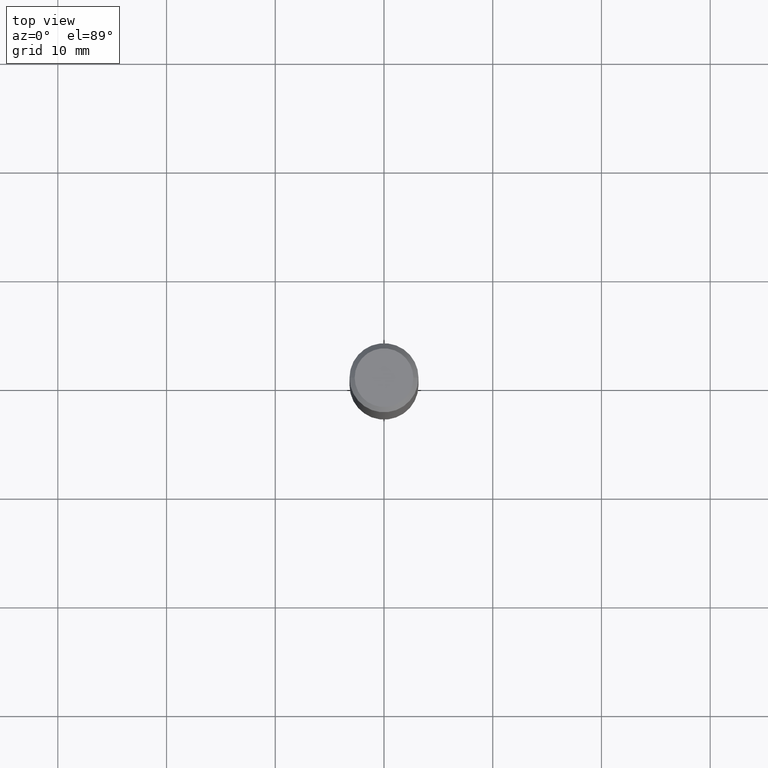
[diagram: clean part render]
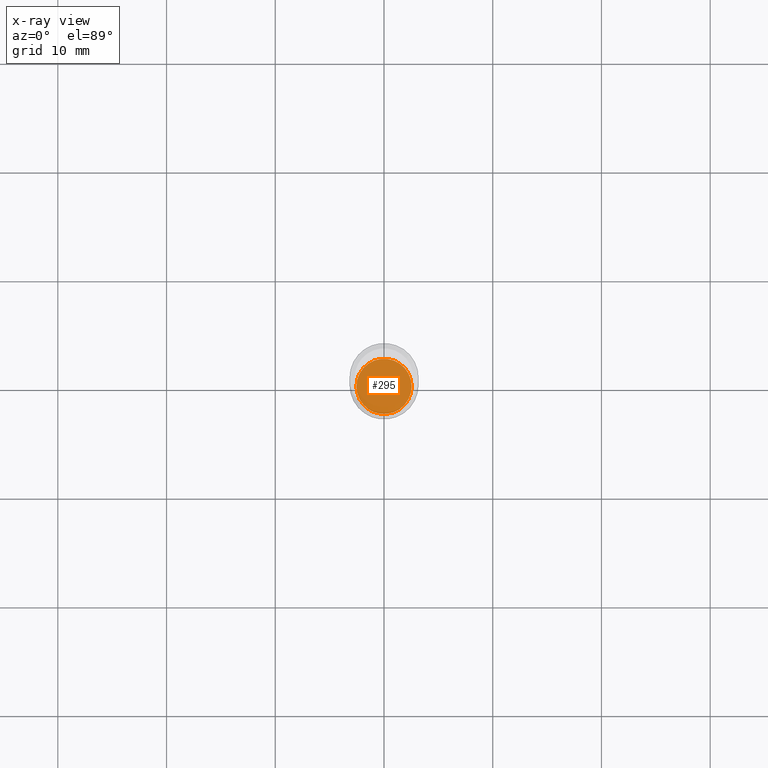
[diagram: x-ray — body ghosted, one internal face saturated and labeled with its STEP entity id]
A machine part, top view, then the same camera in x-ray: the body is ghosted and one INTERNAL B-rep face — a face not visible from any outside direction — is saturated and labeled: STEP entity #295.
In plain terms, the highlighted planar face has unit normal (-0, 0, 1).
Its self-contained STEP definition (entity closure, byte-faithful):
#26 = CARTESIAN_POINT ( 'NONE',  ( 4.465426040094059556E-29, -6.375444924727584257E-15, -1.826000000000000068 ) ) ;
#37 = CARTESIAN_POINT ( 'NONE',  ( 0.1000000000000000056, -7.073741192496210140E-15, -1.826000000000000068 ) ) ;
#40 = FACE_OUTER_BOUND ( 'NONE', #70, .T. ) ;
#64 = CARTESIAN_POINT ( 'NONE',  ( -0.1000000000000000056, -5.662252961793372239E-15, -1.826000000000000068 ) ) ;
#65 = CIRCLE ( 'NONE', #483, 0.1000000000000000056 ) ;
#67 = VERTEX_POINT ( 'NONE', #64 ) ;
#70 = EDGE_LOOP ( 'NONE', ( #82, #107 ) ) ;
#82 = ORIENTED_EDGE ( 'NONE', *, *, #86, .F. ) ;
#86 = EDGE_CURVE ( 'NONE', #250, #67, #229, .T. ) ;
#98 = DIRECTION ( 'NONE',  ( 1.000000000000000000, -6.982962677686264344E-15, 0.000000000000000000 ) ) ;
#107 = ORIENTED_EDGE ( 'NONE', *, *, #185, .F. ) ;
#108 = PLANE ( 'NONE',  #135 ) ;
#115 = CARTESIAN_POINT ( 'NONE',  ( 4.465426040094059556E-29, -6.375444924727584257E-15, -1.826000000000000068 ) ) ;
#135 = AXIS2_PLACEMENT_3D ( 'NONE', #115, #150, #224 ) ;
#150 = DIRECTION ( 'NONE',  ( -2.438088387897960049E-29, 3.491481338843145188E-15, 1.000000000000000000 ) ) ;
#170 = CARTESIAN_POINT ( 'NONE',  ( 4.465426040094059556E-29, -6.375444924727584257E-15, -1.826000000000000068 ) ) ;
#185 = EDGE_CURVE ( 'NONE', #67, #250, #65, .T. ) ;
#206 = DIRECTION ( 'NONE',  ( -2.445468806185136597E-29, 3.491481338843145583E-15, 1.000000000000000000 ) ) ;
#224 = DIRECTION ( 'NONE',  ( 1.000000000000000000, -6.982962677686265922E-15, 4.876176775795935793E-29 ) ) ;
#229 = CIRCLE ( 'NONE', #457, 0.1000000000000000056 ) ;
#250 = VERTEX_POINT ( 'NONE', #37 ) ;
#295 = ADVANCED_FACE ( 'NONE', ( #40 ), #108, .F. ) ;
#361 = DIRECTION ( 'NONE',  ( 1.000000000000000000, -6.982962677686264344E-15, 0.000000000000000000 ) ) ;
#400 = DIRECTION ( 'NONE',  ( -2.445468806185136597E-29, 3.491481338843145583E-15, 1.000000000000000000 ) ) ;
#457 = AXIS2_PLACEMENT_3D ( 'NONE', #26, #400, #361 ) ;
#483 = AXIS2_PLACEMENT_3D ( 'NONE', #170, #206, #98 ) ;